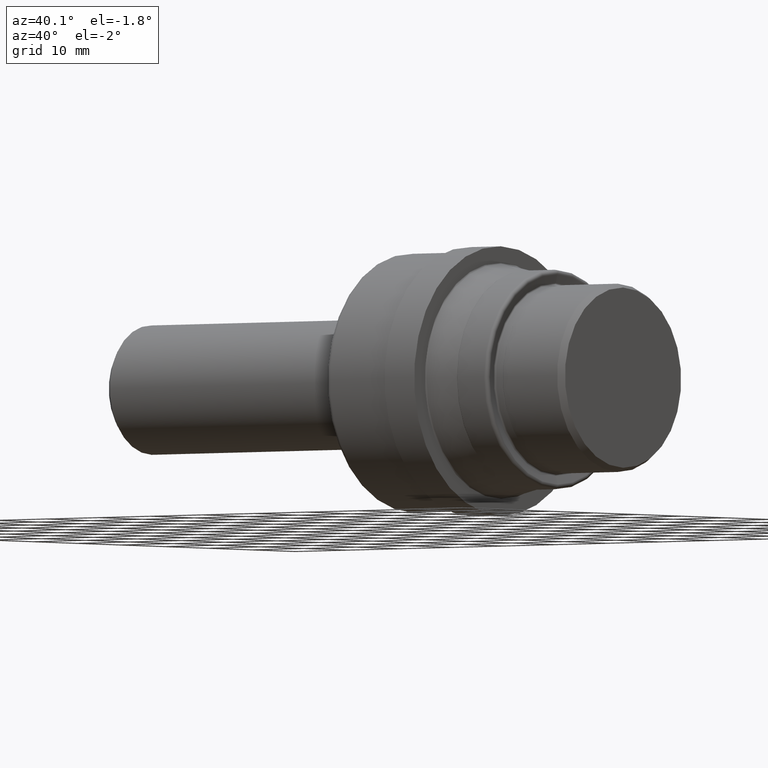
[diagram: clean part render]
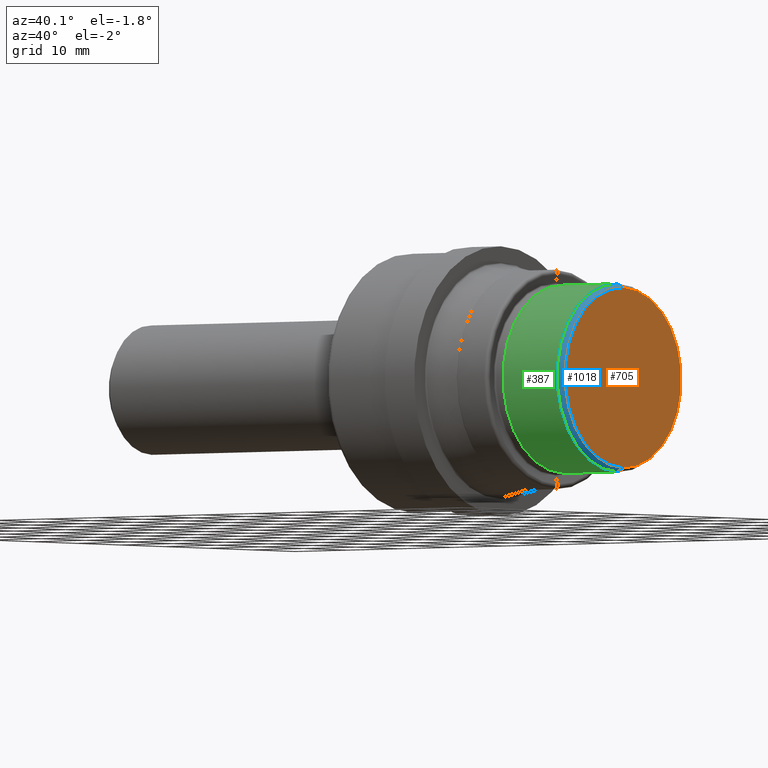
[diagram: same view with three faces highlighted in distinct colors, each labeled with its STEP entity id]
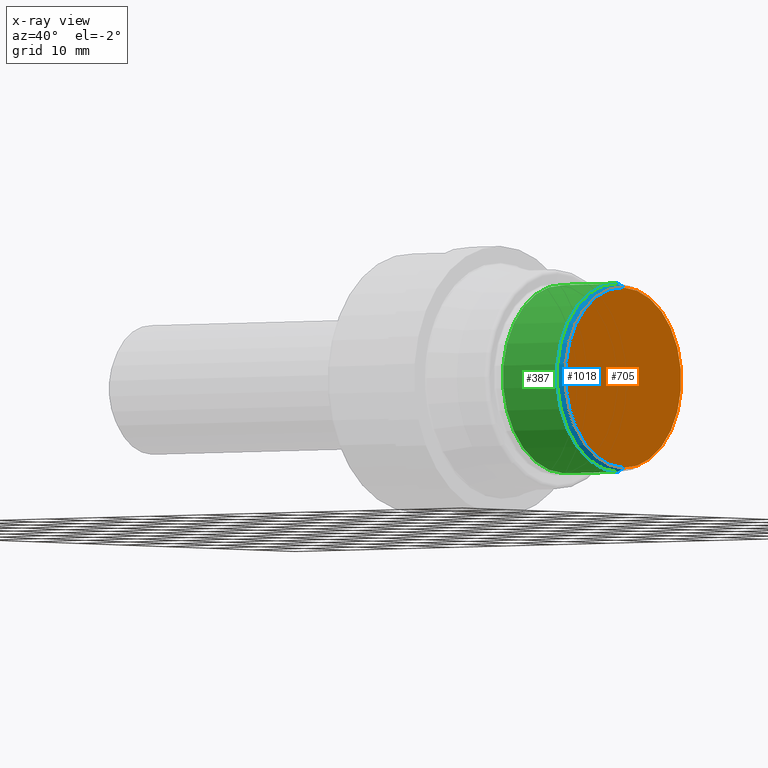
[diagram: x-ray of the same camera — body ghosted, the three highlighted faces saturated]
A machine part, auxiliary view with three faces highlighted in distinct colors.
The next image is the same camera in x-ray (body ghosted, the three faces saturated) — at least one of them is partly hidden behind the body in this view.
Their STEP definitions:

[orange] entity #705 — the highlighted planar face has unit normal (1, 0, -0).
#55 = CIRCLE ( 'NONE', #402, 0.5224059892324148802 ) ;
#145 = CARTESIAN_POINT ( 'NONE',  ( 3.620000000000000107, 6.539038257518823720E-17, -0.5224059892324148802 ) ) ;
#179 = DIRECTION ( 'NONE',  ( 0.0000000000000000000, 0.0000000000000000000, -1.000000000000000000 ) ) ;
#186 = VERTEX_POINT ( 'NONE', #422 ) ;
#257 = CARTESIAN_POINT ( 'NONE',  ( 3.620000000000000107, 0.0000000000000000000, 0.0000000000000000000 ) ) ;
#317 = AXIS2_PLACEMENT_3D ( 'NONE', #532, #452, #862 ) ;
#400 = EDGE_CURVE ( 'NONE', #186, #959, #55, .T. ) ;
#402 = AXIS2_PLACEMENT_3D ( 'NONE', #990, #405, #902 ) ;
#403 = EDGE_CURVE ( 'NONE', #959, #186, #856, .T. ) ;
#405 = DIRECTION ( 'NONE',  ( 1.000000000000000000, -0.0000000000000000000, -0.0000000000000000000 ) ) ;
#420 = ORIENTED_EDGE ( 'NONE', *, *, #403, .T. ) ;
#422 = CARTESIAN_POINT ( 'NONE',  ( 3.620000000000000107, 0.0000000000000000000, 0.5224059892324148802 ) ) ;
#425 = PLANE ( 'NONE',  #317 ) ;
#452 = DIRECTION ( 'NONE',  ( 1.000000000000000000, 0.0000000000000000000, -0.0000000000000000000 ) ) ;
#532 = CARTESIAN_POINT ( 'NONE',  ( 3.620000000000000107, 0.5224059892324148802, 0.0000000000000000000 ) ) ;
#670 = AXIS2_PLACEMENT_3D ( 'NONE', #257, #734, #179 ) ;
#693 = EDGE_LOOP ( 'NONE', ( #721, #420 ) ) ;
#705 = ADVANCED_FACE ( 'NONE', ( #818 ), #425, .T. ) ;
#721 = ORIENTED_EDGE ( 'NONE', *, *, #400, .T. ) ;
#734 = DIRECTION ( 'NONE',  ( 1.000000000000000000, -0.0000000000000000000, -0.0000000000000000000 ) ) ;
#818 = FACE_OUTER_BOUND ( 'NONE', #693, .T. ) ;
#856 = CIRCLE ( 'NONE', #670, 0.5224059892324148802 ) ;
#862 = DIRECTION ( 'NONE',  ( -0.0000000000000000000, 0.0000000000000000000, -1.000000000000000000 ) ) ;
#902 = DIRECTION ( 'NONE',  ( 0.0000000000000000000, 0.0000000000000000000, -1.000000000000000000 ) ) ;
#959 = VERTEX_POINT ( 'NONE', #145 ) ;
#990 = CARTESIAN_POINT ( 'NONE',  ( 3.620000000000000107, 0.0000000000000000000, 0.0000000000000000000 ) ) ;

[blue] entity #1018 — the highlighted conical surface has half-angle 30 deg.
#7 = EDGE_CURVE ( 'NONE', #959, #431, #322, .T. ) ;
#35 = EDGE_CURVE ( 'NONE', #1005, #431, #216, .T. ) ;
#36 = CARTESIAN_POINT ( 'NONE',  ( 3.620000000000000107, 0.0000000000000000000, 0.5224059892324148802 ) ) ;
#41 = ORIENTED_EDGE ( 'NONE', *, *, #400, .F. ) ;
#55 = CIRCLE ( 'NONE', #402, 0.5224059892324148802 ) ;
#145 = CARTESIAN_POINT ( 'NONE',  ( 3.620000000000000107, 6.539038257518823720E-17, -0.5224059892324148802 ) ) ;
#186 = VERTEX_POINT ( 'NONE', #422 ) ;
#202 = DIRECTION ( 'NONE',  ( 0.0000000000000000000, 0.0000000000000000000, -1.000000000000000000 ) ) ;
#216 = CIRCLE ( 'NONE', #969, 0.5454999999999999849 ) ;
#277 = EDGE_CURVE ( 'NONE', #186, #1005, #335, .T. ) ;
#284 = CARTESIAN_POINT ( 'NONE',  ( 3.580000000000000071, 0.0000000000000000000, 0.0000000000000000000 ) ) ;
#308 = DIRECTION ( 'NONE',  ( -1.000000000000000000, 0.0000000000000000000, 0.0000000000000000000 ) ) ;
#322 = LINE ( 'NONE', #364, #390 ) ;
#335 = LINE ( 'NONE', #36, #968 ) ;
#349 = AXIS2_PLACEMENT_3D ( 'NONE', #789, #308, #1025 ) ;
#360 = ORIENTED_EDGE ( 'NONE', *, *, #7, .F. ) ;
#364 = CARTESIAN_POINT ( 'NONE',  ( 3.620000000000000107, 6.397628225688835079E-17, -0.5224059892324148802 ) ) ;
#390 = VECTOR ( 'NONE', #948, 39.37007874015748143 ) ;
#400 = EDGE_CURVE ( 'NONE', #186, #959, #55, .T. ) ;
#402 = AXIS2_PLACEMENT_3D ( 'NONE', #990, #405, #902 ) ;
#405 = DIRECTION ( 'NONE',  ( 1.000000000000000000, -0.0000000000000000000, -0.0000000000000000000 ) ) ;
#422 = CARTESIAN_POINT ( 'NONE',  ( 3.620000000000000107, 0.0000000000000000000, 0.5224059892324148802 ) ) ;
#431 = VERTEX_POINT ( 'NONE', #571 ) ;
#534 = EDGE_LOOP ( 'NONE', ( #360, #41, #979, #541 ) ) ;
#541 = ORIENTED_EDGE ( 'NONE', *, *, #35, .T. ) ;
#560 = FACE_OUTER_BOUND ( 'NONE', #534, .T. ) ;
#571 = CARTESIAN_POINT ( 'NONE',  ( 3.580000000000000071, 6.680448289348812360E-17, -0.5454999999999999849 ) ) ;
#582 = DIRECTION ( 'NONE',  ( 1.000000000000000000, -0.0000000000000000000, -0.0000000000000000000 ) ) ;
#747 = CONICAL_SURFACE ( 'NONE', #349, 0.5224059892324148802, 0.5235987755983002589 ) ;
#789 = CARTESIAN_POINT ( 'NONE',  ( 3.620000000000000107, 0.0000000000000000000, 0.0000000000000000000 ) ) ;
#902 = DIRECTION ( 'NONE',  ( 0.0000000000000000000, 0.0000000000000000000, -1.000000000000000000 ) ) ;
#917 = DIRECTION ( 'NONE',  ( -0.8660254037844379305, 0.0000000000000000000, 0.5000000000000012212 ) ) ;
#948 = DIRECTION ( 'NONE',  ( -0.8660254037844379305, 6.123233995736780827E-17, -0.5000000000000012212 ) ) ;
#959 = VERTEX_POINT ( 'NONE', #145 ) ;
#968 = VECTOR ( 'NONE', #917, 39.37007874015748143 ) ;
#969 = AXIS2_PLACEMENT_3D ( 'NONE', #284, #582, #202 ) ;
#979 = ORIENTED_EDGE ( 'NONE', *, *, #277, .T. ) ;
#990 = CARTESIAN_POINT ( 'NONE',  ( 3.620000000000000107, 0.0000000000000000000, 0.0000000000000000000 ) ) ;
#1005 = VERTEX_POINT ( 'NONE', #1037 ) ;
#1018 = ADVANCED_FACE ( 'NONE', ( #560 ), #747, .T. ) ;
#1025 = DIRECTION ( 'NONE',  ( 0.0000000000000000000, 0.0000000000000000000, 1.000000000000000000 ) ) ;
#1037 = CARTESIAN_POINT ( 'NONE',  ( 3.580000000000000071, 0.0000000000000000000, 0.5454999999999999849 ) ) ;

[green] entity #387 — the highlighted cylindrical surface (partial cylindrical patch) has radius 13.8557 mm, axis along (1, -0, -0).
#30 = ORIENTED_EDGE ( 'NONE', *, *, #664, .T. ) ;
#35 = EDGE_CURVE ( 'NONE', #1005, #431, #216, .T. ) ;
#96 = DIRECTION ( 'NONE',  ( 0.0000000000000000000, 0.0000000000000000000, -1.000000000000000000 ) ) ;
#169 = ORIENTED_EDGE ( 'NONE', *, *, #488, .T. ) ;
#170 = VECTOR ( 'NONE', #954, 39.37007874015748143 ) ;
#180 = AXIS2_PLACEMENT_3D ( 'NONE', #807, #245, #722 ) ;
#185 = CARTESIAN_POINT ( 'NONE',  ( 0.0000000000000000000, 0.0000000000000000000, 0.0000000000000000000 ) ) ;
#202 = DIRECTION ( 'NONE',  ( 0.0000000000000000000, 0.0000000000000000000, -1.000000000000000000 ) ) ;
#216 = CIRCLE ( 'NONE', #969, 0.5454999999999999849 ) ;
#245 = DIRECTION ( 'NONE',  ( 1.000000000000000000, -0.0000000000000000000, -0.0000000000000000000 ) ) ;
#284 = CARTESIAN_POINT ( 'NONE',  ( 3.580000000000000071, 0.0000000000000000000, 0.0000000000000000000 ) ) ;
#301 = VERTEX_POINT ( 'NONE', #581 ) ;
#387 = ADVANCED_FACE ( 'NONE', ( #444 ), #418, .T. ) ;
#407 = VECTOR ( 'NONE', #539, 39.37007874015748143 ) ;
#418 = CYLINDRICAL_SURFACE ( 'NONE', #625, 0.5454999999999999849 ) ;
#431 = VERTEX_POINT ( 'NONE', #571 ) ;
#444 = FACE_OUTER_BOUND ( 'NONE', #1021, .T. ) ;
#488 = EDGE_CURVE ( 'NONE', #301, #829, #1003, .T. ) ;
#539 = DIRECTION ( 'NONE',  ( 1.000000000000000000, -0.0000000000000000000, -0.0000000000000000000 ) ) ;
#571 = CARTESIAN_POINT ( 'NONE',  ( 3.580000000000000071, 6.680448289348812360E-17, -0.5454999999999999849 ) ) ;
#581 = CARTESIAN_POINT ( 'NONE',  ( 3.170340741737109003, 6.680448289348812360E-17, 0.5454999999999999849 ) ) ;
#582 = DIRECTION ( 'NONE',  ( 1.000000000000000000, -0.0000000000000000000, -0.0000000000000000000 ) ) ;
#625 = AXIS2_PLACEMENT_3D ( 'NONE', #185, #822, #96 ) ;
#632 = LINE ( 'NONE', #774, #407 ) ;
#664 = EDGE_CURVE ( 'NONE', #829, #431, #632, .T. ) ;
#676 = ORIENTED_EDGE ( 'NONE', *, *, #998, .F. ) ;
#722 = DIRECTION ( 'NONE',  ( 0.0000000000000000000, 0.0000000000000000000, -1.000000000000000000 ) ) ;
#774 = CARTESIAN_POINT ( 'NONE',  ( 0.0000000000000000000, 0.0000000000000000000, -0.5454999999999999849 ) ) ;
#781 = CARTESIAN_POINT ( 'NONE',  ( 3.170340741737109003, 0.0000000000000000000, -0.5454999999999999849 ) ) ;
#807 = CARTESIAN_POINT ( 'NONE',  ( 3.170340741737109003, 0.0000000000000000000, 0.0000000000000000000 ) ) ;
#822 = DIRECTION ( 'NONE',  ( 1.000000000000000000, -0.0000000000000000000, -0.0000000000000000000 ) ) ;
#827 = LINE ( 'NONE', #867, #170 ) ;
#829 = VERTEX_POINT ( 'NONE', #781 ) ;
#867 = CARTESIAN_POINT ( 'NONE',  ( 0.0000000000000000000, 6.680448289348812360E-17, 0.5454999999999999849 ) ) ;
#944 = ORIENTED_EDGE ( 'NONE', *, *, #35, .F. ) ;
#954 = DIRECTION ( 'NONE',  ( 1.000000000000000000, -0.0000000000000000000, -0.0000000000000000000 ) ) ;
#969 = AXIS2_PLACEMENT_3D ( 'NONE', #284, #582, #202 ) ;
#998 = EDGE_CURVE ( 'NONE', #301, #1005, #827, .T. ) ;
#1003 = CIRCLE ( 'NONE', #180, 0.5454999999999999849 ) ;
#1005 = VERTEX_POINT ( 'NONE', #1037 ) ;
#1021 = EDGE_LOOP ( 'NONE', ( #676, #169, #30, #944 ) ) ;
#1037 = CARTESIAN_POINT ( 'NONE',  ( 3.580000000000000071, 0.0000000000000000000, 0.5454999999999999849 ) ) ;